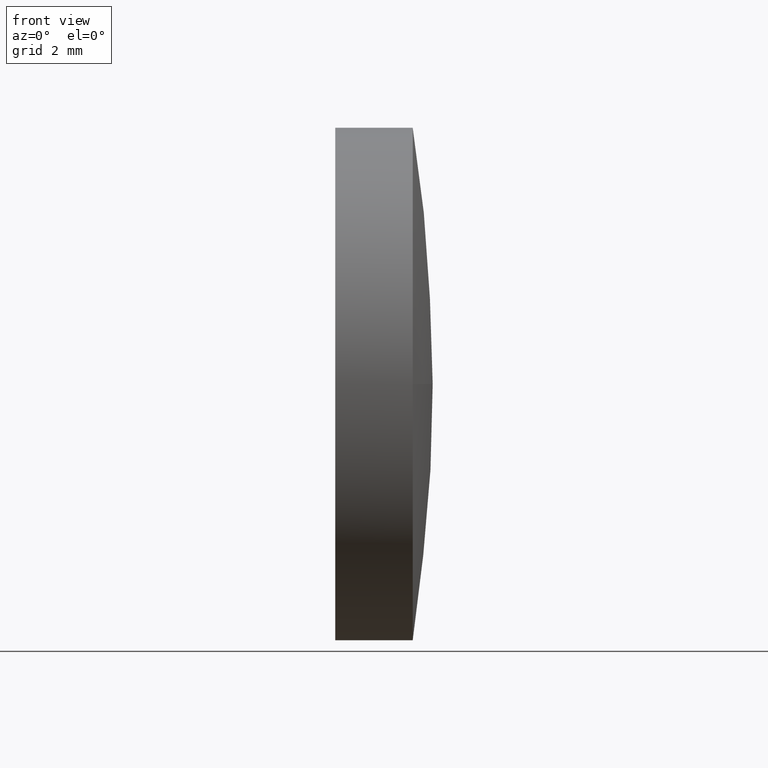
[diagram: clean part render]
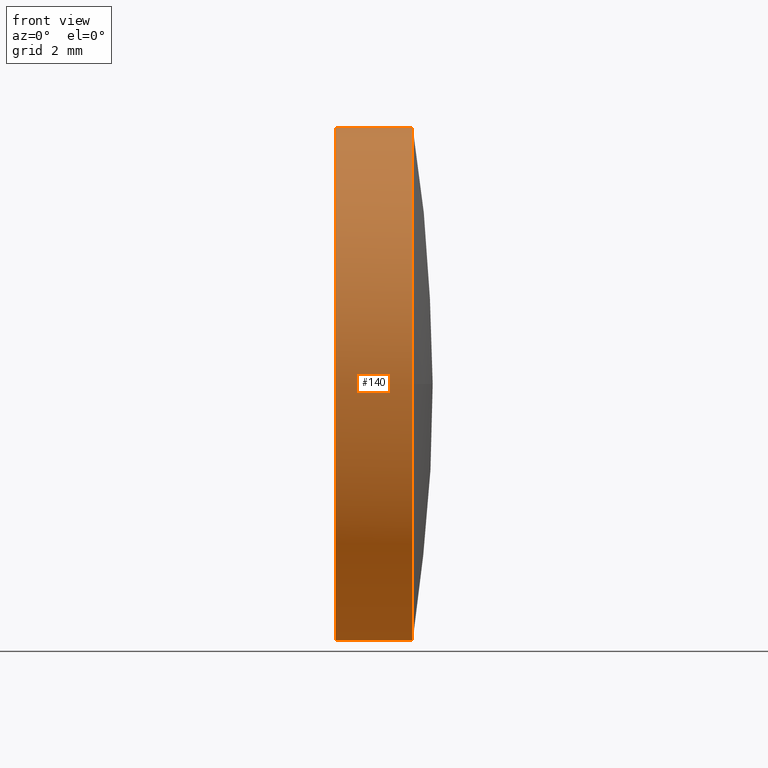
[diagram: same view with one face highlighted and labeled with its STEP entity id]
A machine part, front view. The second image highlights one B-rep face of the part: STEP entity #140.
In plain terms, the highlighted cylindrical surface (partial cylindrical patch) has radius 5 mm, axis along (-1, -0, -0).
Its self-contained STEP definition (entity closure, byte-faithful):
#8 = ORIENTED_EDGE ( 'NONE', *, *, #120, .T. ) ;
#9 = VERTEX_POINT ( 'NONE', #60 ) ;
#11 = VERTEX_POINT ( 'NONE', #178 ) ;
#12 = CYLINDRICAL_SURFACE ( 'NONE', #186, 4.999999999999997300 ) ;
#15 = ORIENTED_EDGE ( 'NONE', *, *, #59, .T. ) ;
#16 = CARTESIAN_POINT ( 'NONE',  ( 409.6747124043386600, 38.61574357864396500, 0.0000000000000000000 ) ) ;
#22 = CARTESIAN_POINT ( 'NONE',  ( 411.9823846584040400, 33.61574357864400000, 0.0000000000000000000 ) ) ;
#25 = CARTESIAN_POINT ( 'NONE',  ( 409.6747124043386600, 38.61574357864396500, -4.999999999999997300 ) ) ;
#32 = ORIENTED_EDGE ( 'NONE', *, *, #163, .F. ) ;
#33 = LINE ( 'NONE', #25, #154 ) ;
#34 = VERTEX_POINT ( 'NONE', #22 ) ;
#36 = DIRECTION ( 'NONE',  ( -1.000000000000000000, -0.0000000000000000000, -0.0000000000000000000 ) ) ;
#39 = AXIS2_PLACEMENT_3D ( 'NONE', #116, #150, #66 ) ;
#43 = DIRECTION ( 'NONE',  ( -1.000000000000000000, -0.0000000000000000000, -0.0000000000000000000 ) ) ;
#44 = DIRECTION ( 'NONE',  ( -1.000000000000000000, -0.0000000000000000000, -0.0000000000000000000 ) ) ;
#59 = EDGE_CURVE ( 'NONE', #34, #78, #123, .T. ) ;
#60 = CARTESIAN_POINT ( 'NONE',  ( 410.4723846584040500, 38.61574357864396500, 4.999999999999997300 ) ) ;
#62 = DIRECTION ( 'NONE',  ( 0.0000000000000000000, 0.0000000000000000000, 1.000000000000000000 ) ) ;
#63 = CARTESIAN_POINT ( 'NONE',  ( 410.4723846584040500, 38.61574357864396500, 0.0000000000000000000 ) ) ;
#64 = EDGE_CURVE ( 'NONE', #78, #9, #157, .T. ) ;
#66 = DIRECTION ( 'NONE',  ( 0.0000000000000000000, 0.0000000000000000000, 1.000000000000000000 ) ) ;
#74 = CIRCLE ( 'NONE', #111, 4.999999999999997300 ) ;
#75 = EDGE_LOOP ( 'NONE', ( #160, #8, #15, #90, #32 ) ) ;
#78 = VERTEX_POINT ( 'NONE', #153 ) ;
#80 = CIRCLE ( 'NONE', #98, 4.999999999999997300 ) ;
#90 = ORIENTED_EDGE ( 'NONE', *, *, #64, .T. ) ;
#93 = CARTESIAN_POINT ( 'NONE',  ( 411.9823846584040400, 38.61574357864396500, -4.999999999999997300 ) ) ;
#98 = AXIS2_PLACEMENT_3D ( 'NONE', #63, #114, #62 ) ;
#100 = VERTEX_POINT ( 'NONE', #93 ) ;
#107 = DIRECTION ( 'NONE',  ( 0.0000000000000000000, 0.0000000000000000000, 1.000000000000000000 ) ) ;
#108 = DIRECTION ( 'NONE',  ( -1.000000000000000000, -0.0000000000000000000, -0.0000000000000000000 ) ) ;
#110 = VECTOR ( 'NONE', #43, 1000.000000000000000 ) ;
#111 = AXIS2_PLACEMENT_3D ( 'NONE', #137, #44, #177 ) ;
#114 = DIRECTION ( 'NONE',  ( -1.000000000000000000, -0.0000000000000000000, -0.0000000000000000000 ) ) ;
#116 = CARTESIAN_POINT ( 'NONE',  ( 411.9823846584040400, 38.61574357864396500, 0.0000000000000000000 ) ) ;
#120 = EDGE_CURVE ( 'NONE', #100, #34, #74, .T. ) ;
#123 = CIRCLE ( 'NONE', #39, 4.999999999999997300 ) ;
#125 = FACE_OUTER_BOUND ( 'NONE', #75, .T. ) ;
#134 = CARTESIAN_POINT ( 'NONE',  ( 409.6747124043386600, 38.61574357864396500, 4.999999999999997300 ) ) ;
#137 = CARTESIAN_POINT ( 'NONE',  ( 411.9823846584040400, 38.61574357864396500, 0.0000000000000000000 ) ) ;
#140 = ADVANCED_FACE ( 'NONE', ( #125 ), #12, .T. ) ;
#150 = DIRECTION ( 'NONE',  ( -1.000000000000000000, -0.0000000000000000000, -0.0000000000000000000 ) ) ;
#153 = CARTESIAN_POINT ( 'NONE',  ( 411.9823846584040400, 38.61574357864396500, 4.999999999999997300 ) ) ;
#154 = VECTOR ( 'NONE', #36, 1000.000000000000000 ) ;
#157 = LINE ( 'NONE', #134, #110 ) ;
#158 = EDGE_CURVE ( 'NONE', #100, #11, #33, .T. ) ;
#160 = ORIENTED_EDGE ( 'NONE', *, *, #158, .F. ) ;
#163 = EDGE_CURVE ( 'NONE', #11, #9, #80, .T. ) ;
#177 = DIRECTION ( 'NONE',  ( 0.0000000000000000000, 0.0000000000000000000, 1.000000000000000000 ) ) ;
#178 = CARTESIAN_POINT ( 'NONE',  ( 410.4723846584040500, 38.61574357864396500, -4.999999999999997300 ) ) ;
#186 = AXIS2_PLACEMENT_3D ( 'NONE', #16, #108, #107 ) ;